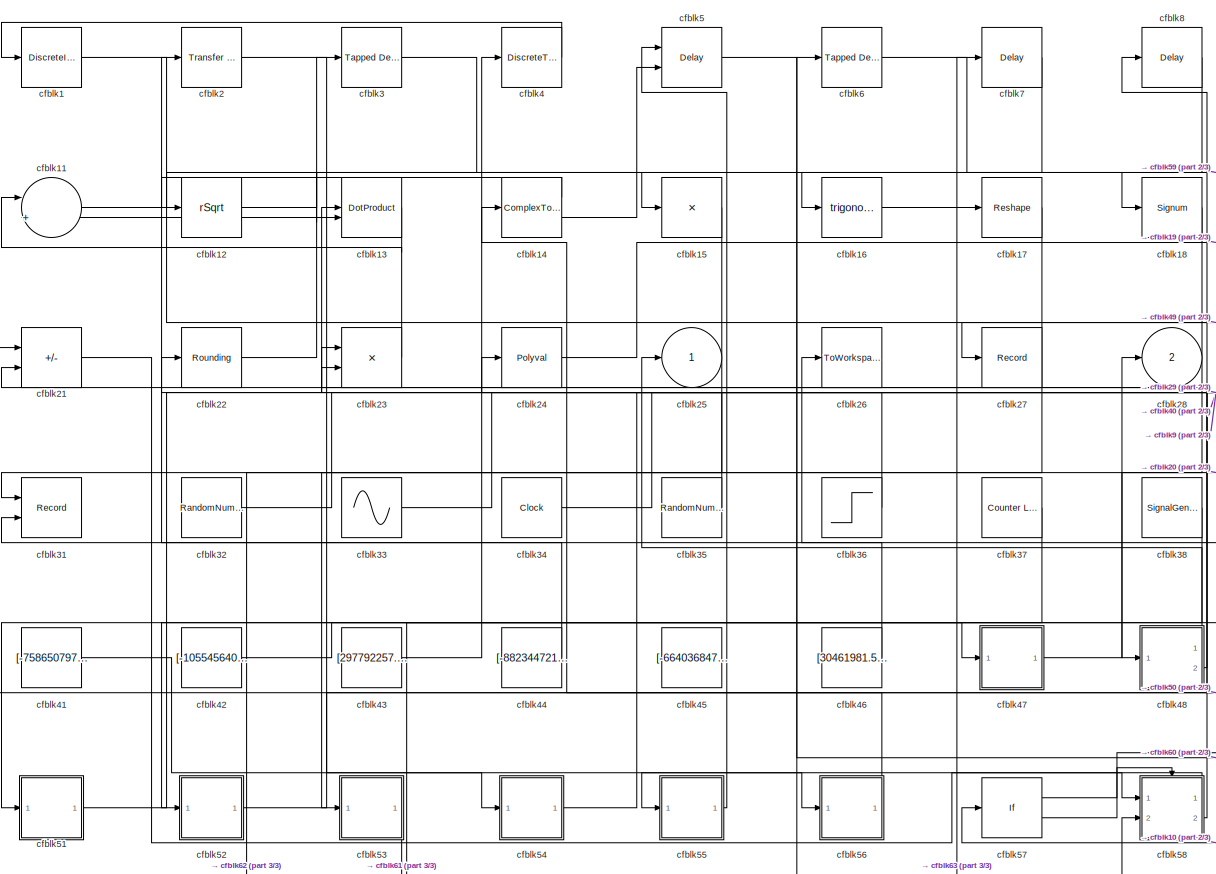
[diagram: root canvas - part 1/3, most of the canvas]
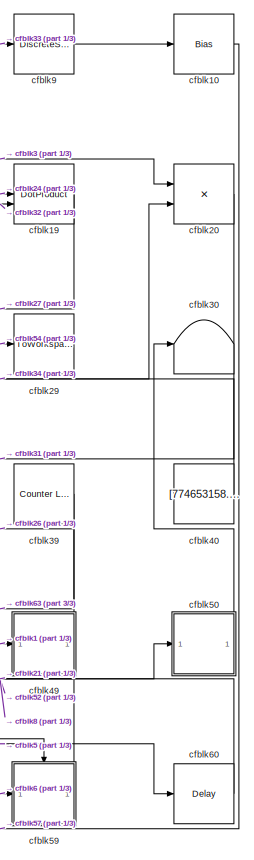
[diagram: root canvas - part 2/3, right side, full height]
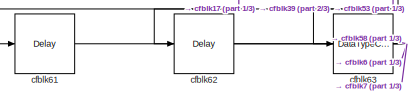
[diagram: root canvas - part 3/3, bottom left region]
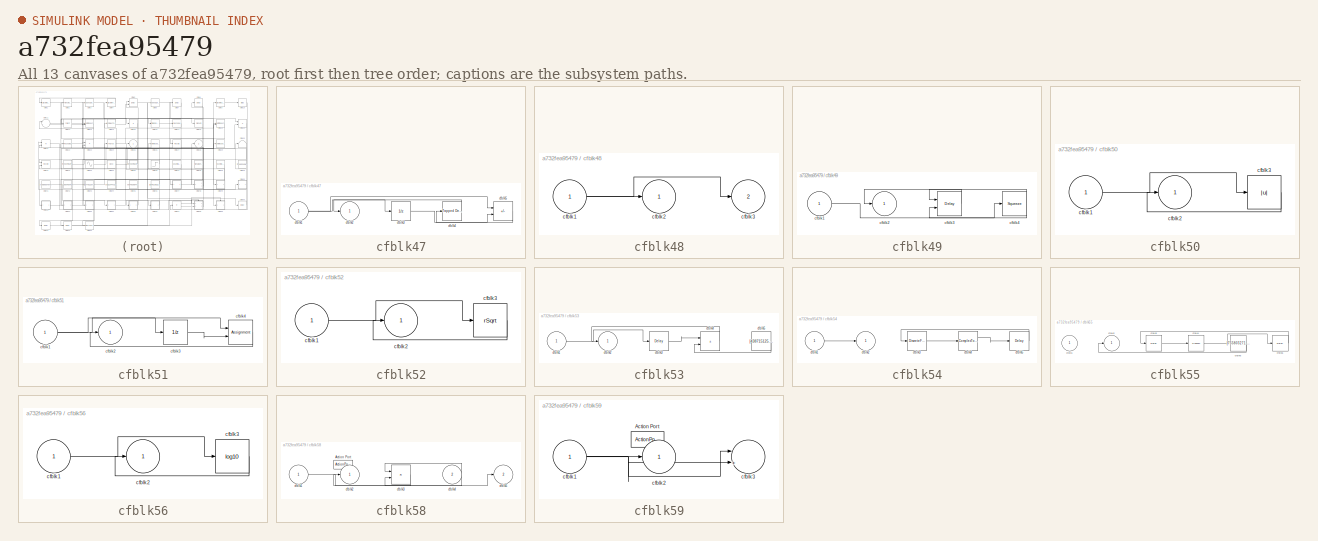
[diagram: thumbnail index - all 13 canvases of the model, root first then tree order]
MODEL slx_a732fea95479
KIND model
CONFIG AbsTol = auto
CONFIG EnableMultiTasking = off
CONFIG FixedStep = auto
CONFIG MaxStep = auto
CONFIG MinStep = auto
CONFIG RelTol = 1e-3
CONFIG SampleTimeConstraint = Unconstrained
CONFIG SolverName = VariableStepAuto
CONFIG StartTime = 0.0
CONFIG StopTime = 10.0
BLOCK [DiscreteIntegrator] cfblk1
  ICPrevOutput = DiscIntNeverNeededParam
  ICPrevScaledInput = DiscIntNeverNeededParam
  InitialConditionSetting = Auto
  Ports = [1, 1]
BLOCK [Bias] cfblk10
  Bias = [549223745.856910]
  SaturateOnIntegerOverflow = off
BLOCK [Sum] cfblk11
  Inputs = |++
  Ports = [2, 1]
BLOCK [Sqrt] cfblk12
  AlgorithmType = Newton-Raphson
  Operator = rSqrt
BLOCK [DotProduct] cfblk13
  OutDataTypeStr = Inherit: Inherit via internal rule
BLOCK [ComplexToMagnitudeAngle] cfblk14
  Ports = [1, 2]
BLOCK [Product] cfblk15
  Inputs = *
  Ports = [1, 1]
BLOCK [Trigonometry] cfblk16
  Ports = [1, 1]
BLOCK [Reshape] cfblk17
  Ports = [1, 1]
BLOCK [Signum] cfblk18
BLOCK [DotProduct] cfblk19
  OutDataTypeStr = Inherit: Inherit via internal rule
BLOCK [Reference] cfblk2  REF=simulink/Discrete/Transfer Fcn
Real Zero
  Ports = [1, 1]
  SourceBlock = simulink/Discrete/Transfer Fcn\nReal Zero
  SourceProductBaseCode = SL
  SourceType = Transfer Fcn Real Zero
BLOCK [Product] cfblk20
  Inputs = **
  Ports = [2, 1]
BLOCK [Sum] cfblk21
  IconShape = rectangular
  Inputs = --
  Ports = [2, 1]
BLOCK [Rounding] cfblk22
BLOCK [Product] cfblk23
  Ports = [2, 1]
BLOCK [Polyval] cfblk24
  Coefs = [ +2.081618890e-019, -1.441693666e-014, +4.719686976e-010, -8.536869453e-006, +1.621573104e-001, -8.087801117e+001 ]
BLOCK [Outport] cfblk25
BLOCK [ToWorkspace] cfblk26
  FixptAsFi = on
  MaxDataPoints = inf
  Ports = [1]
  SampleTime = -1
  SaveFormat = Timeseries
  VariableName = gjlnoih
BLOCK [Record] cfblk27
  FileSettingsInternal = {"entries":[{"content":{"excelSettings":{"content":{},"type":"Streamout.ExcelSettings"}},"type":"Streamout.FileSettingStorage","uuid":"06ae0355-d5c6-42cb-9c90-f28d0b9c9483"}],"packageUris":["http://schema.mathworks.com/mf0/streamout_blocks/R2020a"],"version":"1.0"}
  Ports = [1]
  SignalsInternal = {"entries":[{"content":{"signals":[{"content":{"blockPath":["sampleModel21/cfblk27"],"channel":[],"dimensions":[1],"domain":"sampleModel21/cfblk27","lineColor":"#7e2f8e","plots":[1],"port":1,"sid":[""],"signalID":857,"signalName":"cfblk19"},"type":"RecordBlkView.Signal","uuid":"550456b8-a3c5-4e99-9496-18ba5b3ce816"}]},"type":"RecordBlkView.InputSignals","uuid":"227f541e-70fe-4312-9297-2dd5238bfc09...<+94ch>
  VisualizationBindings = {"sparklinesplugin":{"info":[{"bindingParametersList":[],"subplotID":1}]}}
BLOCK [Outport] cfblk28
  Port = 2
BLOCK [ToWorkspace] cfblk29
  FixptAsFi = on
  MaxDataPoints = inf
  Ports = [1]
  SampleTime = -1
  SaveFormat = Timeseries
  VariableName = sypptjl
BLOCK [Reference] cfblk3  REF=simulink/Discrete/Tapped Delay
  Ports = [1, 1]
  SourceBlock = simulink/Discrete/Tapped Delay
  SourceProductBaseCode = SL
  SourceType = Tapped Delay Line
BLOCK [Terminator] cfblk30
BLOCK [Record] cfblk31
  CompatibilityTag = XY
  FileSettingsInternal = {"entries":[{"content":{"excelSettings":{"content":{},"type":"Streamout.ExcelSettings"}},"type":"Streamout.FileSettingStorage","uuid":"4404ca33-d5d5-4be6-a275-f212b1ac5b68"}],"packageUris":["http://schema.mathworks.com/mf0/streamout_blocks/R2020a"],"version":"1.0"}
  Layout = [1 1]
  Ports = [2]
  SignalsInternal = {"entries":[{"content":{"signals":[{"content":{"blockPath":["sampleModel21/cfblk31"],"channel":[],"dimensions":[1],"domain":"sampleModel21/cfblk31","lineColor":"#a2142f","plots":[1],"port":1,"sid":[""],"signalID":861,"signalName":"cfblk20"},"type":"RecordBlkView.Signal","uuid":"5181162e-a2c5-45a1-a0af-fcb2aa090d6f"},{"content":{"blockPath":["sampleModel21/cfblk31"],"channel":[],"dimensions":[1],"d...<+377ch>
  VisualizationBindings = {"xyplotplugin":{"info":[{"series":[{"bindingParametersList":[{"parameter":"X-Axis","signalID":861,"signalName":"cfblk20"},{"parameter":"Y-Axis","signalID":865,"signalName":"cfblk46"}],"seriesID":12145}],"subplotID":1}]}}
BLOCK [RandomNumber] cfblk32
  Mean = [1875.112904]
  SampleTime = 0.1
  Seed = [450787807.000000]
  Variance = [92871.083530]
BLOCK [Sin] cfblk33
  Amplitude = [274869736.107470]
  Bias = [-81272284.351688]
  Ports = [0, 1]
  SampleTime = 0
BLOCK [Clock] cfblk34
BLOCK [RandomNumber] cfblk35
  Mean = [10754.891883]
  SampleTime = 0.1
  Seed = [802202179.000000]
  Variance = [4123.265892]
BLOCK [Step] cfblk36
  After = [-970827253.016853]
  Before = [-599344810.418858]
  SampleTime = 0
  Time = [33.000000]
BLOCK [Reference] cfblk37  REF=simulink/Sources/Counter
Limited
  Ports = [0, 1]
  SourceBlock = simulink/Sources/Counter\nLimited
  SourceProductBaseCode = SL
  SourceType = Counter Limited
BLOCK [SignalGenerator] cfblk38
  Amplitude = [135023519.724701]
  Ports = [0, 1]
  WaveForm = square
BLOCK [Reference] cfblk39  REF=simulink/Sources/Counter
Limited
  Ports = [0, 1]
  SourceBlock = simulink/Sources/Counter\nLimited
  SourceProductBaseCode = SL
  SourceType = Counter Limited
BLOCK [DiscreteTransferFcn] cfblk4
  InputPortMap = u0
  Ports = [1, 1]
  SampleTime = 1
BLOCK [Constant] cfblk40
  SampleTime = 1
  Value = [774653158.903651]
BLOCK [Constant] cfblk41
  SampleTime = 1
  Value = [-758650797.134562]
BLOCK [Constant] cfblk42
  SampleTime = 1
  Value = [-105545640.240152]
BLOCK [Constant] cfblk43
  SampleTime = 1
  Value = [297792257.232111]
BLOCK [Constant] cfblk44
  SampleTime = 1
  Value = [-882344721.863890]
BLOCK [Constant] cfblk45
  SampleTime = 1
  Value = [-664036847.010224]
BLOCK [Constant] cfblk46
  SampleTime = 1
  Value = [30461981.515994]
BLOCK [SubSystem] cfblk47
  Ports = [1, 1]
  RequestExecContextInheritance = off
BLOCK [Inport] cfblk47/cfblk1
BLOCK [Outport] cfblk47/cfblk2
BLOCK [UnitDelay] cfblk47/cfblk3
  HasFrameUpgradeWarning = on
BLOCK [Reference] cfblk47/cfblk4  REF=simulink/Discrete/Tapped Delay
  Ports = [1, 1]
  SourceBlock = simulink/Discrete/Tapped Delay
  SourceProductBaseCode = SL
  SourceType = Tapped Delay Line
BLOCK [Sum] cfblk47/cfblk5
  IconShape = rectangular
  Inputs = +-
  Ports = [2, 1]
BLOCK [SubSystem] cfblk48
  Ports = [1, 2]
  RequestExecContextInheritance = off
BLOCK [Inport] cfblk48/cfblk1
BLOCK [Outport] cfblk48/cfblk2
BLOCK [Outport] cfblk48/cfblk3
  Port = 2
BLOCK [SubSystem] cfblk49
  Ports = [1, 1]
  RequestExecContextInheritance = off
BLOCK [Inport] cfblk49/cfblk1
BLOCK [Outport] cfblk49/cfblk2
BLOCK [Delay] cfblk49/cfblk3
  InputPortMap = u0,e6
  Ports = [2, 1]
  SampleTime = 1
  ShowEnablePort = on
BLOCK [Squeeze] cfblk49/cfblk4
BLOCK [Delay] cfblk5
  DelayLengthSource = Input port
  InputPortMap = u0,p1
  Ports = [2, 1]
  SampleTime = 1
BLOCK [SubSystem] cfblk50
  Ports = [1, 1]
  RequestExecContextInheritance = off
BLOCK [Inport] cfblk50/cfblk1
BLOCK [Outport] cfblk50/cfblk2
BLOCK [Abs] cfblk50/cfblk3
  SaturateOnIntegerOverflow = off
BLOCK [SubSystem] cfblk51
  Ports = [1, 1]
  RequestExecContextInheritance = off
BLOCK [Inport] cfblk51/cfblk1
BLOCK [Outport] cfblk51/cfblk2
BLOCK [UnitDelay] cfblk51/cfblk3
  HasFrameUpgradeWarning = on
BLOCK [Assignment] cfblk51/cfblk4
  DiagnosticForDimensions = Warning
  IndexOptions = Index vector (dialog)
  Indices = 1
  OutputSizes = 1
  Ports = [2, 1]
BLOCK [SubSystem] cfblk52
  Ports = [1, 1]
  RequestExecContextInheritance = off
BLOCK [Inport] cfblk52/cfblk1
BLOCK [Outport] cfblk52/cfblk2
BLOCK [Sqrt] cfblk52/cfblk3
  AlgorithmType = Newton-Raphson
  Operator = rSqrt
BLOCK [SubSystem] cfblk53
  Ports = [1, 1]
  RequestExecContextInheritance = off
BLOCK [Inport] cfblk53/cfblk1
BLOCK [Outport] cfblk53/cfblk2
BLOCK [Delay] cfblk53/cfblk3
  InputPortMap = u0
  Ports = [1, 1]
  SampleTime = 1
BLOCK [Sum] cfblk53/cfblk4
  IconShape = rectangular
  Ports = [2, 1]
BLOCK [Constant] cfblk53/cfblk5
  SampleTime = 1
  Value = [438715125.836091]
BLOCK [SubSystem] cfblk54
  Ports = [1, 1]
  RequestExecContextInheritance = off
BLOCK [Inport] cfblk54/cfblk1
BLOCK [Outport] cfblk54/cfblk2
BLOCK [DiscreteFilter] cfblk54/cfblk3
  InputPortMap = u0
  Ports = [1, 1]
  SampleTime = 1
BLOCK [ComplexToMagnitudeAngle] cfblk54/cfblk4
  Ports = [1, 2]
BLOCK [Delay] cfblk54/cfblk5
  InputPortMap = u0
  Ports = [1, 1]
  SampleTime = 1
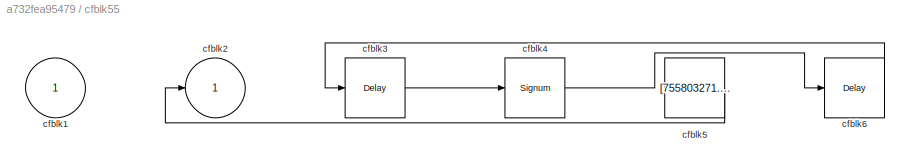
BLOCK [SubSystem] cfblk55
  Ports = [1, 1]
  RequestExecContextInheritance = off
BLOCK [Inport] cfblk55/cfblk1
BLOCK [Outport] cfblk55/cfblk2
BLOCK [Delay] cfblk55/cfblk3
  InputPortMap = u0
  Ports = [1, 1]
  SampleTime = 1
BLOCK [Signum] cfblk55/cfblk4
BLOCK [Constant] cfblk55/cfblk5
  SampleTime = 1
  Value = [755803271.641448]
BLOCK [Delay] cfblk55/cfblk6
  InputPortMap = u0
  Ports = [1, 1]
  SampleTime = 1
BLOCK [SubSystem] cfblk56
  Ports = [1, 1]
  RequestExecContextInheritance = off
BLOCK [Inport] cfblk56/cfblk1
BLOCK [Outport] cfblk56/cfblk2
BLOCK [Math] cfblk56/cfblk3
  Operator = log10
  Ports = [1, 1]
BLOCK [If] cfblk57
  IfExpression = u1 >= 0
  Ports = [1, 2]
  SampleTime = 1
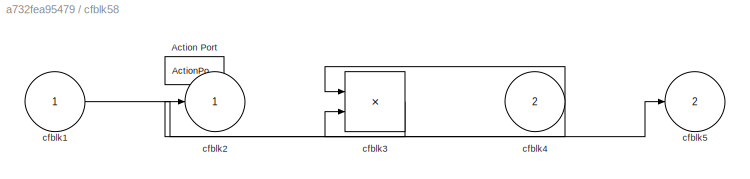
BLOCK [SubSystem] cfblk58
  Ports = [2, 2, 0, 0, 0, 0, 0, 1]
  RequestExecContextInheritance = off
  TreatAsAtomicUnit = on
BLOCK [ActionPort] cfblk58/Action Port
  ActionPortLabel = if(u1 >= 0)
BLOCK [Inport] cfblk58/cfblk1
BLOCK [Outport] cfblk58/cfblk2
BLOCK [Product] cfblk58/cfblk3
  Inputs = **
  Ports = [2, 1]
BLOCK [Inport] cfblk58/cfblk4
  Port = 2
BLOCK [Outport] cfblk58/cfblk5
  Port = 2
BLOCK [SubSystem] cfblk59
  Ports = [1, 1, 0, 0, 0, 0, 0, 1]
  RequestExecContextInheritance = off
  TreatAsAtomicUnit = on
BLOCK [ActionPort] cfblk59/Action Port
  ActionPortLabel = else
BLOCK [Inport] cfblk59/cfblk1
BLOCK [Outport] cfblk59/cfblk2
BLOCK [Sum] cfblk59/cfblk3
  Inputs = |++
  Ports = [2, 1]
BLOCK [Reference] cfblk6  REF=simulink/Discrete/Tapped Delay
  Ports = [1, 1]
  SourceBlock = simulink/Discrete/Tapped Delay
  SourceProductBaseCode = SL
  SourceType = Tapped Delay Line
BLOCK [Delay] cfblk60
  InputPortMap = u0
  Ports = [1, 1]
  SampleTime = 1
BLOCK [Delay] cfblk61
  InputPortMap = u0
  Ports = [1, 1]
  SampleTime = 1
BLOCK [Delay] cfblk62
  InputPortMap = u0
  Ports = [1, 1]
  SampleTime = 1
BLOCK [DataTypeConversion] cfblk63
  RndMeth = Floor
  SaturateOnIntegerOverflow = off
BLOCK [Delay] cfblk7
  InputPortMap = u0
  Ports = [1, 1]
  SampleTime = 1
BLOCK [Delay] cfblk8
  InputPortMap = u0
  Ports = [1, 1]
  SampleTime = 1
BLOCK [DiscreteStateSpace] cfblk9
LINE cfblk10:1 -> cfblk57:1
LINE cfblk11:1 -> cfblk15:1
LINE cfblk12:1 -> cfblk18:1
LINE cfblk13:1 -> cfblk11:2
LINE cfblk14:1 -> cfblk12:1
LINE cfblk14:2 -> cfblk5:2
LINE cfblk15:1 -> cfblk53:1
LINE cfblk16:1 -> cfblk17:1
LINE cfblk17:1 -> cfblk62:1
LINE cfblk18:1 -> cfblk48:1
LINE cfblk19:1 -> cfblk27:1
LINE cfblk1:1 -> cfblk49:1
LINE cfblk20:1 -> cfblk31:1
LINE cfblk21:1 -> cfblk58:1
LINE cfblk22:1 -> cfblk3:1
LINE cfblk23:1 -> cfblk11:1
LINE cfblk24:1 -> cfblk19:1
LINE cfblk2:1 -> cfblk56:1
LINE cfblk32:1 -> cfblk19:2
LINE cfblk33:1 -> cfblk9:1
LINE cfblk34:1 -> cfblk20:2
LINE cfblk35:1 -> cfblk22:1
LINE cfblk36:1 -> cfblk23:2
LINE cfblk37:1 -> cfblk52:1
LINE cfblk38:1 -> cfblk51:1
LINE cfblk39:1 -> cfblk63:1
LINE cfblk3:1 -> cfblk20:1
LINE cfblk40:1 -> cfblk24:1
LINE cfblk41:1 -> cfblk54:1
LINE cfblk42:1 -> cfblk47:1
LINE cfblk43:1 -> cfblk4:1
LINE cfblk44:1 -> cfblk2:1
LINE cfblk46:1 -> cfblk31:2
NET cfblk47/cfblk1:1 -> cfblk47/cfblk3:1, cfblk47/cfblk5:1
LINE cfblk47/cfblk3:1 -> cfblk47/cfblk5:2
LINE cfblk47/cfblk4:1 -> cfblk47/cfblk2:1
LINE cfblk47/cfblk5:1 -> cfblk47/cfblk4:1
LINE cfblk47:1 -> cfblk28:1
NET cfblk48/cfblk1:1 -> cfblk48/cfblk2:1, cfblk48/cfblk3:1
LINE cfblk48:1 -> cfblk25:1
LINE cfblk48:2 -> cfblk21:2
LINE cfblk49/cfblk1:1 -> cfblk49/cfblk4:1
LINE cfblk49/cfblk3:1 -> cfblk49/cfblk2:1
NET cfblk49/cfblk4:1 -> cfblk49/cfblk3:1, cfblk49/cfblk3:2
LINE cfblk49:1 -> cfblk26:1
LINE cfblk4:1 -> cfblk1:1
LINE cfblk50/cfblk1:1 -> cfblk50/cfblk3:1
LINE cfblk50/cfblk3:1 -> cfblk50/cfblk2:1
LINE cfblk50:1 -> cfblk30:1
NET cfblk51/cfblk1:1 -> cfblk51/cfblk3:1, cfblk51/cfblk4:1
LINE cfblk51/cfblk3:1 -> cfblk51/cfblk4:2
LINE cfblk51/cfblk4:1 -> cfblk51/cfblk2:1
LINE cfblk51:1 -> cfblk13:1
LINE cfblk52/cfblk1:1 -> cfblk52/cfblk3:1
LINE cfblk52/cfblk3:1 -> cfblk52/cfblk2:1
LINE cfblk52:1 -> cfblk50:1
LINE cfblk53/cfblk1:1 -> cfblk53/cfblk3:1
LINE cfblk53/cfblk3:1 -> cfblk53/cfblk4:1
LINE cfblk53/cfblk4:1 -> cfblk53/cfblk2:1
LINE cfblk53/cfblk5:1 -> cfblk53/cfblk4:2
LINE cfblk53:1 -> cfblk61:1
LINE cfblk54/cfblk1:1 -> cfblk54/cfblk2:1
LINE cfblk54/cfblk3:1 -> cfblk54/cfblk4:1
LINE cfblk54/cfblk4:1 -> cfblk54/cfblk5:1
LINE cfblk54/cfblk5:1 -> cfblk54/cfblk3:1
LINE cfblk54:1 -> cfblk29:1
LINE cfblk55/cfblk3:1 -> cfblk55/cfblk4:1
LINE cfblk55/cfblk4:1 -> cfblk55/cfblk6:1
LINE cfblk55/cfblk5:1 -> cfblk55/cfblk2:1
LINE cfblk55/cfblk6:1 -> cfblk55/cfblk3:1
LINE cfblk55:1 -> cfblk5:1
LINE cfblk56/cfblk1:1 -> cfblk56/cfblk3:1
LINE cfblk56/cfblk3:1 -> cfblk56/cfblk2:1
LINE cfblk56:1 -> cfblk14:1
LINE cfblk57:1 -> cfblk58:ifaction
LINE cfblk57:2 -> cfblk59:ifaction
LINE cfblk58/cfblk1:1 -> cfblk58/cfblk5:1
LINE cfblk58/cfblk3:1 -> cfblk58/cfblk2:1
NET cfblk58/cfblk4:1 -> cfblk58/cfblk3:1, cfblk58/cfblk3:2
LINE cfblk58:1 -> cfblk55:1
LINE cfblk58:2 -> cfblk23:1
NET cfblk59/cfblk1:1 -> cfblk59/cfblk2:1, cfblk59/cfblk3:1, cfblk59/cfblk3:2
LINE cfblk59:1 -> cfblk8:1
LINE cfblk5:1 -> cfblk60:1
LINE cfblk60:1 -> cfblk21:1
LINE cfblk61:1 -> cfblk58:2
LINE cfblk62:1 -> cfblk6:1
LINE cfblk63:1 -> cfblk7:1
LINE cfblk6:1 -> cfblk59:1
LINE cfblk7:1 -> cfblk13:2
LINE cfblk8:1 -> cfblk16:1
LINE cfblk9:1 -> cfblk10:1
note: NET lines group one-source signal fan-out (src -> all destinations, sorted); 1:1 wires keep LINE
